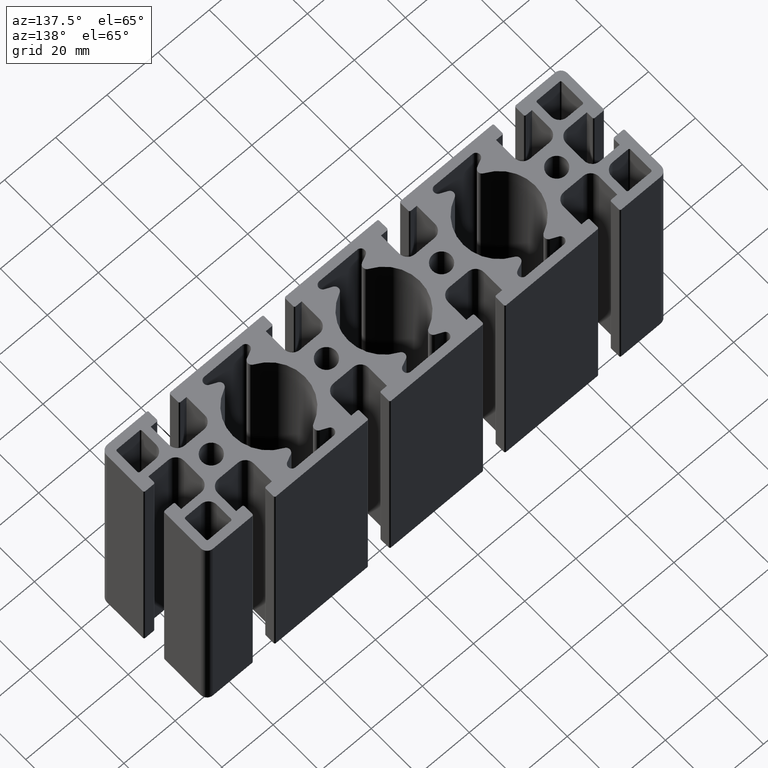
[diagram: clean part render]
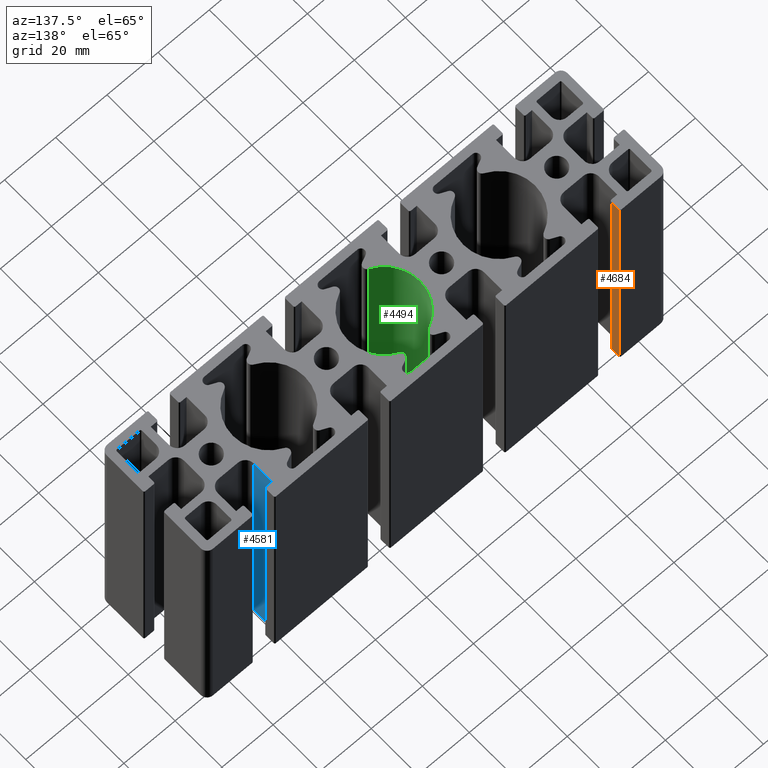
[diagram: same view with three faces highlighted in distinct colors, each labeled with its STEP entity id]
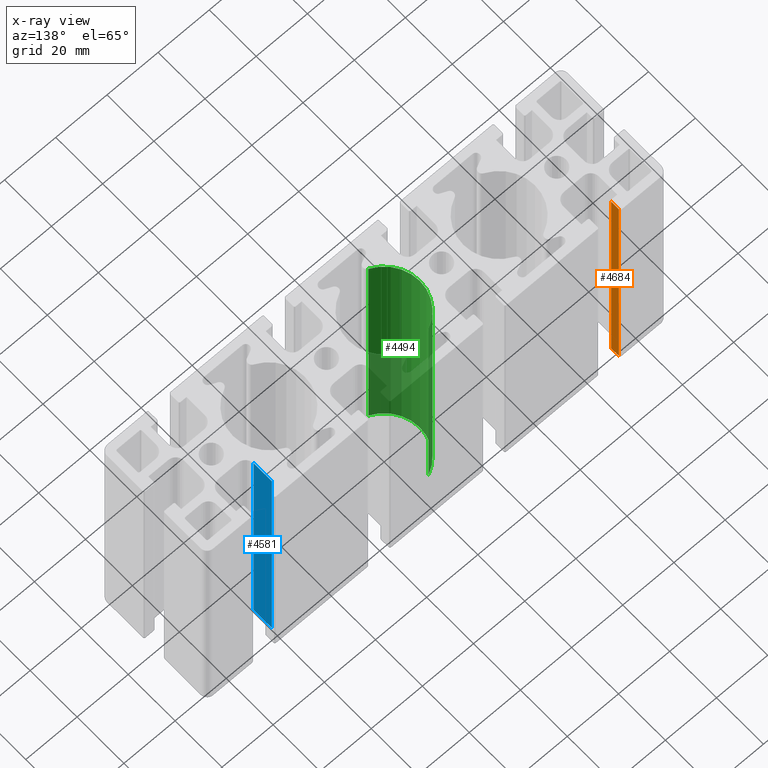
[diagram: x-ray of the same camera — body ghosted, the three highlighted faces saturated]
A machine part, auxiliary view with three faces highlighted in distinct colors.
The next image is the same camera in x-ray (body ghosted, the three faces saturated) — at least one of them is partly hidden behind the body in this view.
Their STEP definitions:

[orange] entity #4684 — the highlighted planar face has unit normal (1, -0, 0).
#151=PLANE('',#5138);
#380=FACE_OUTER_BOUND('',#618,.T.);
#618=EDGE_LOOP('',(#3835,#3836,#3837,#3838));
#1090=LINE('',#7866,#1554);
#1091=LINE('',#7869,#1555);
#1092=LINE('',#7871,#1556);
#1093=LINE('',#7872,#1557);
#1554=VECTOR('',#6474,100.);
#1555=VECTOR('',#6477,3.30000000000013);
#1556=VECTOR('',#6478,3.30000000000013);
#1557=VECTOR('',#6479,100.);
#2249=VERTEX_POINT('',#7862);
#2250=VERTEX_POINT('',#7864);
#2251=VERTEX_POINT('',#7868);
#2252=VERTEX_POINT('',#7870);
#2928=EDGE_CURVE('',#2249,#2250,#1090,.T.);
#2929=EDGE_CURVE('',#2249,#2251,#1091,.T.);
#2930=EDGE_CURVE('',#2252,#2250,#1092,.T.);
#2931=EDGE_CURVE('',#2251,#2252,#1093,.T.);
#3835=ORIENTED_EDGE('',*,*,#2929,.F.);
#3836=ORIENTED_EDGE('',*,*,#2928,.T.);
#3837=ORIENTED_EDGE('',*,*,#2930,.F.);
#3838=ORIENTED_EDGE('',*,*,#2931,.F.);
#4684=ADVANCED_FACE('',(#380),#151,.T.);
#5138=AXIS2_PLACEMENT_3D('',#7867,#6475,#6476);
#6474=DIRECTION('',(0.,0.,1.));
#6475=DIRECTION('center_axis',(1.,-3.76802965933372E-14,0.));
#6476=DIRECTION('ref_axis',(3.83693077310454E-14,1.,0.));
#6477=DIRECTION('',(-3.76802965933372E-14,-1.,0.));
#6478=DIRECTION('',(3.76802965933372E-14,1.,0.));
#6479=DIRECTION('',(0.,0.,1.));
#7862=CARTESIAN_POINT('',(-71.6500000000002,22.,0.));
#7864=CARTESIAN_POINT('',(-71.6500000000002,22.,100.));
#7866=CARTESIAN_POINT('',(-71.6500000000002,22.,0.));
#7867=CARTESIAN_POINT('Origin',(-71.6500000000003,18.6999999999998,0.));
#7868=CARTESIAN_POINT('',(-71.6500000000003,18.6999999999998,0.));
#7869=CARTESIAN_POINT('',(-71.6500000000002,22.,0.));
#7870=CARTESIAN_POINT('',(-71.6500000000003,18.6999999999998,100.));
#7871=CARTESIAN_POINT('',(-71.6500000000002,22.,100.));
#7872=CARTESIAN_POINT('',(-71.6500000000003,18.6999999999998,0.));

[blue] entity #4581 — the highlighted planar face has unit normal (1, 0, 0).
#93=PLANE('',#4945);
#277=FACE_OUTER_BOUND('',#515,.T.);
#515=EDGE_LOOP('',(#3423,#3424,#3425,#3426));
#871=LINE('',#7248,#1335);
#872=LINE('',#7251,#1336);
#873=LINE('',#7253,#1337);
#874=LINE('',#7254,#1338);
#1335=VECTOR('',#5869,100.);
#1336=VECTOR('',#5872,7.79999999999994);
#1337=VECTOR('',#5873,7.7999999999999);
#1338=VECTOR('',#5874,100.);
#2043=VERTEX_POINT('',#7244);
#2044=VERTEX_POINT('',#7246);
#2045=VERTEX_POINT('',#7250);
#2046=VERTEX_POINT('',#7252);
#2619=EDGE_CURVE('',#2043,#2044,#871,.T.);
#2620=EDGE_CURVE('',#2043,#2045,#872,.T.);
#2621=EDGE_CURVE('',#2046,#2044,#873,.T.);
#2622=EDGE_CURVE('',#2045,#2046,#874,.T.);
#3423=ORIENTED_EDGE('',*,*,#2620,.F.);
#3424=ORIENTED_EDGE('',*,*,#2619,.T.);
#3425=ORIENTED_EDGE('',*,*,#2621,.F.);
#3426=ORIENTED_EDGE('',*,*,#2622,.F.);
#4581=ADVANCED_FACE('',(#277),#93,.T.);
#4945=AXIS2_PLACEMENT_3D('',#7249,#5870,#5871);
#5869=DIRECTION('',(0.,0.,1.));
#5870=DIRECTION('center_axis',(1.,0.,0.));
#5871=DIRECTION('ref_axis',(0.,1.,0.));
#5872=DIRECTION('',(0.,-1.,0.));
#5873=DIRECTION('',(0.,1.,0.));
#5874=DIRECTION('',(0.,0.,1.));
#7244=CARTESIAN_POINT('',(60.5,18.1999999999998,0.));
#7246=CARTESIAN_POINT('',(60.5,18.1999999999998,100.));
#7248=CARTESIAN_POINT('',(60.5,18.1999999999998,0.));
#7249=CARTESIAN_POINT('Origin',(60.5,10.3999999999999,0.));
#7250=CARTESIAN_POINT('',(60.5,10.3999999999999,0.));
#7251=CARTESIAN_POINT('',(60.5,18.1999999999998,0.));
#7252=CARTESIAN_POINT('',(60.5,10.3999999999999,100.));
#7253=CARTESIAN_POINT('',(60.5,18.1999999999998,100.));
#7254=CARTESIAN_POINT('',(60.5,10.3999999999999,0.));

[green] entity #4494 — the highlighted cylindrical surface (partial cylindrical patch) has radius 14 mm, axis along (0, 0, 1).
#190=FACE_OUTER_BOUND('',#424,.T.);
#424=EDGE_LOOP('',(#3083,#3084,#3085,#3086));
#706=LINE('',#6729,#1170);
#707=LINE('',#6735,#1171);
#1170=VECTOR('',#5344,100.);
#1171=VECTOR('',#5351,100.);
#1619=CIRCLE('',#4767,14.);
#1620=CIRCLE('',#4768,14.);
#1869=VERTEX_POINT('',#6726);
#1870=VERTEX_POINT('',#6728);
#1871=VERTEX_POINT('',#6732);
#1872=VERTEX_POINT('',#6734);
#2361=EDGE_CURVE('',#1869,#1870,#706,.T.);
#2363=EDGE_CURVE('',#1871,#1869,#1619,.T.);
#2364=EDGE_CURVE('',#1871,#1872,#707,.T.);
#2365=EDGE_CURVE('',#1870,#1872,#1620,.T.);
#3083=ORIENTED_EDGE('',*,*,#2363,.F.);
#3084=ORIENTED_EDGE('',*,*,#2364,.T.);
#3085=ORIENTED_EDGE('',*,*,#2365,.F.);
#3086=ORIENTED_EDGE('',*,*,#2361,.F.);
#4369=CYLINDRICAL_SURFACE('',#4766,14.);
#4494=ADVANCED_FACE('',(#190),#4369,.F.);
#4766=AXIS2_PLACEMENT_3D('',#6731,#5347,#5348);
#4767=AXIS2_PLACEMENT_3D('',#6733,#5349,#5350);
#4768=AXIS2_PLACEMENT_3D('',#6736,#5352,#5353);
#5344=DIRECTION('',(0.,0.,1.));
#5347=DIRECTION('center_axis',(0.,0.,1.));
#5348=DIRECTION('ref_axis',(-0.405043106668578,0.914297589267448,0.));
#5349=DIRECTION('center_axis',(0.,0.,1.));
#5350=DIRECTION('ref_axis',(-0.405043106668578,0.914297589267448,0.));
#5351=DIRECTION('',(0.,0.,1.));
#5352=DIRECTION('center_axis',(0.,0.,-1.));
#5353=DIRECTION('ref_axis',(-0.405043106668578,0.914297589267448,0.));
#6726=CARTESIAN_POINT('',(-5.67060349336007,-12.8001662497443,0.));
#6728=CARTESIAN_POINT('',(-5.67060349336007,-12.8001662497443,100.));
#6729=CARTESIAN_POINT('',(-5.67060349336007,-12.8001662497443,0.));
#6731=CARTESIAN_POINT('Origin',(0.,0.,0.));
#6732=CARTESIAN_POINT('',(-5.6706034933601,12.8001662497443,0.));
#6733=CARTESIAN_POINT('Origin',(0.,0.,0.));
#6734=CARTESIAN_POINT('',(-5.6706034933601,12.8001662497443,100.));
#6735=CARTESIAN_POINT('',(-5.6706034933601,12.8001662497443,0.));
#6736=CARTESIAN_POINT('Origin',(0.,0.,100.));